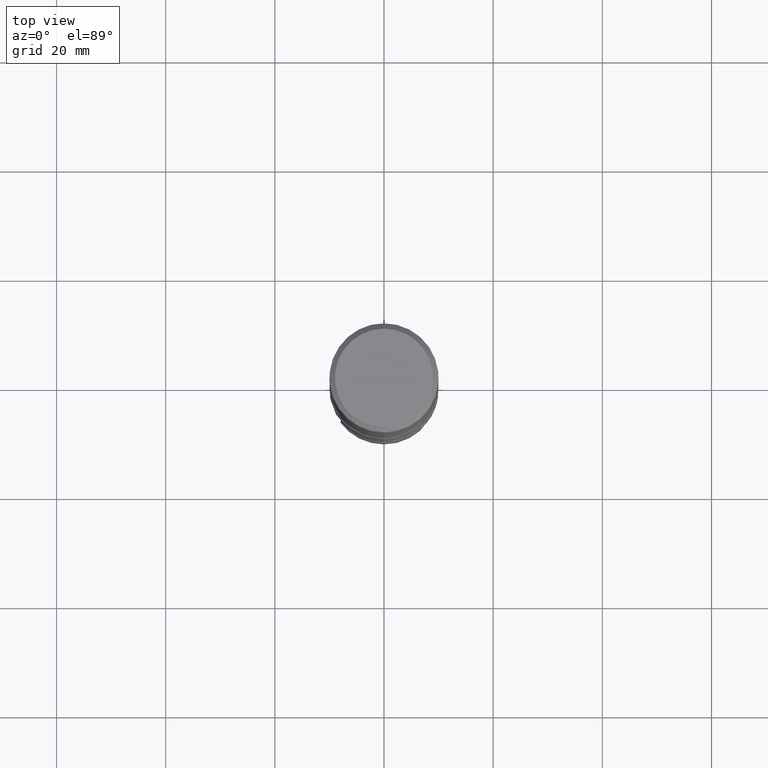
[diagram: clean part render]
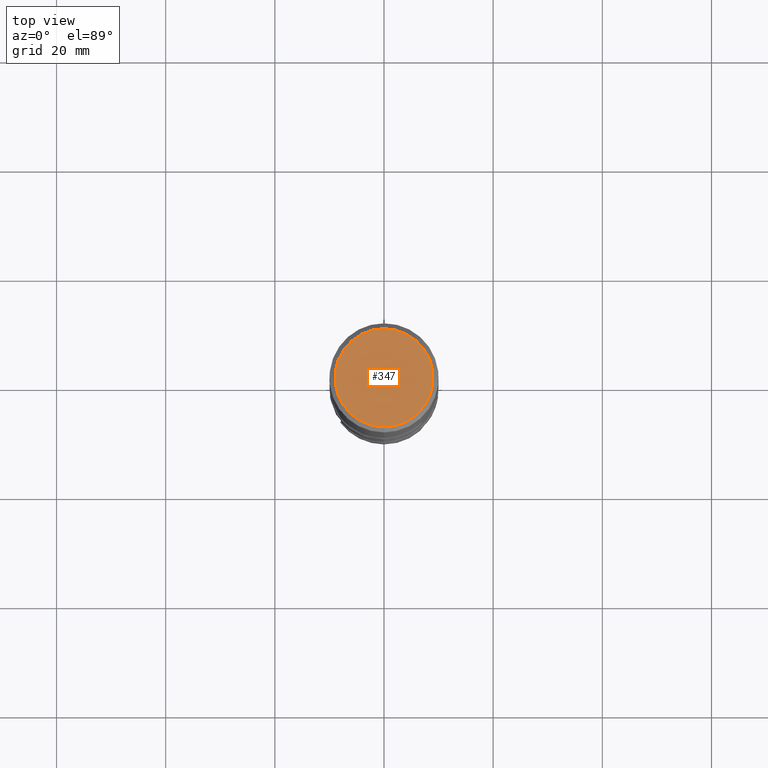
[diagram: same view with one face highlighted and labeled with its STEP entity id]
A machine part, top view. The second image highlights one B-rep face of the part: STEP entity #347.
In plain terms, the highlighted planar face has unit normal (-0, 0, 1).
Its self-contained STEP definition (entity closure, byte-faithful):
#347=ADVANCED_FACE('',(#807),#808,.T.);
#413=VERTEX_POINT('',#883);
#459=EDGE_CURVE('',#541,#413,#931,.T.);
#541=VERTEX_POINT('',#1018);
#619=EDGE_CURVE('',#413,#541,#1104,.T.);
#807=FACE_OUTER_BOUND('',#2742,.T.);
#808=PLANE('',#2743);
#883=CARTESIAN_POINT('',(1.10214571844014E-015,-9.0,0.0));
#931=CIRCLE('',#3198,9.0);
#1018=CARTESIAN_POINT('',(0.0,9.0,0.0));
#1104=CIRCLE('',#4995,9.0);
#2742=EDGE_LOOP('',(#5434,#5435));
#2743=AXIS2_PLACEMENT_3D('',#5436,#5437,#5438);
#3198=AXIS2_PLACEMENT_3D('',#5561,#5562,#5563);
#4995=AXIS2_PLACEMENT_3D('',#5749,#5750,#5751);
#5434=ORIENTED_EDGE('',*,*,#459,.F.);
#5435=ORIENTED_EDGE('',*,*,#619,.F.);
#5436=CARTESIAN_POINT('',(0.0,4.5,0.0));
#5437=DIRECTION('',(-0.0,0.0,1.0));
#5438=DIRECTION('',(0.0,-1.0,0.0));
#5561=CARTESIAN_POINT('',(0.0,0.0,0.0));
#5562=DIRECTION('',(0.0,0.0,-1.0));
#5563=DIRECTION('',(0.0,1.0,0.0));
#5749=CARTESIAN_POINT('',(0.0,0.0,0.0));
#5750=DIRECTION('',(0.0,0.0,-1.0));
#5751=DIRECTION('',(0.0,1.0,0.0));